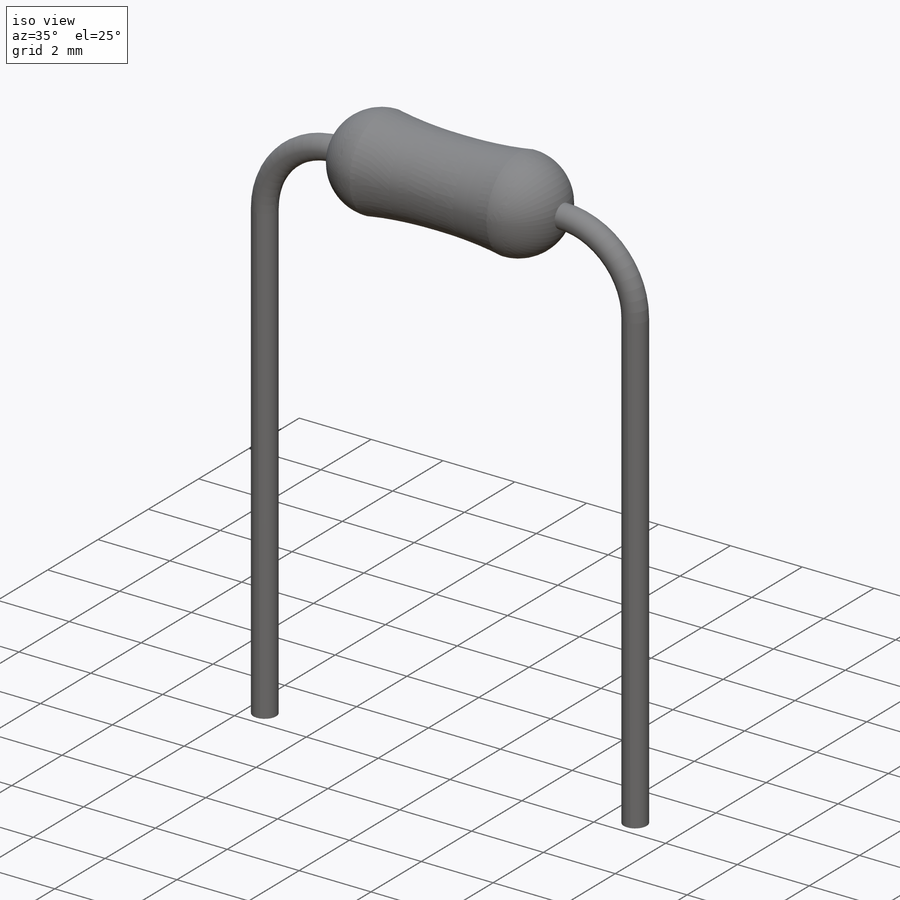
[diagram: iso view]
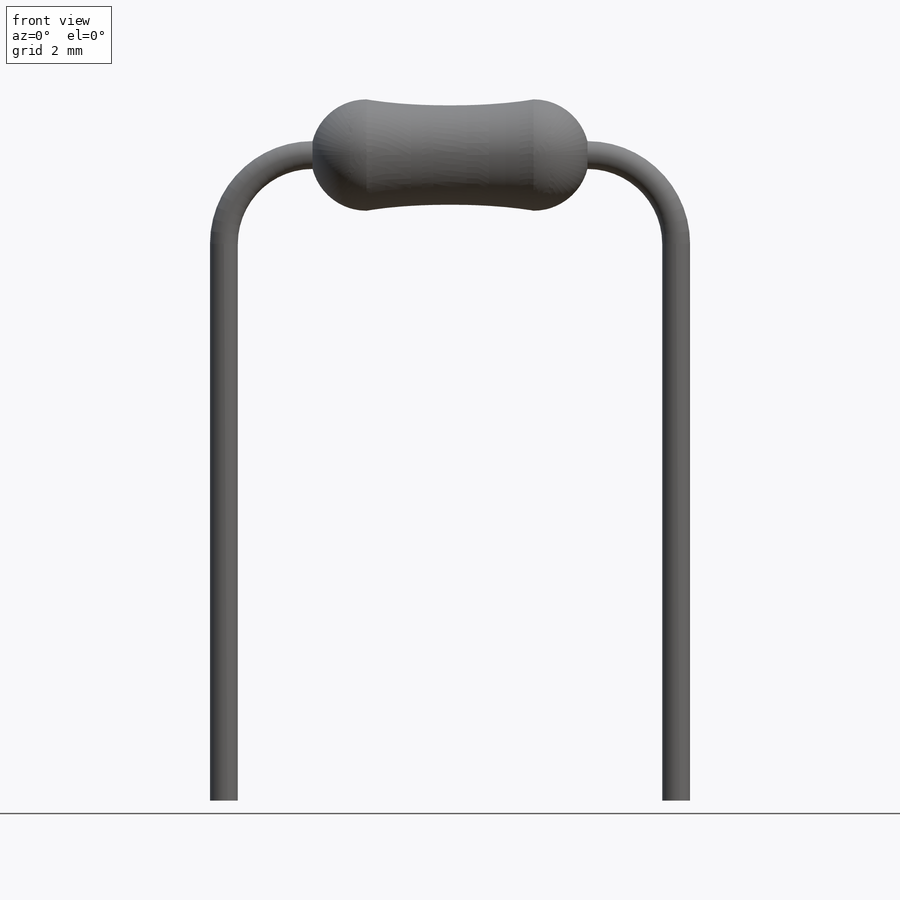
[diagram: front view]
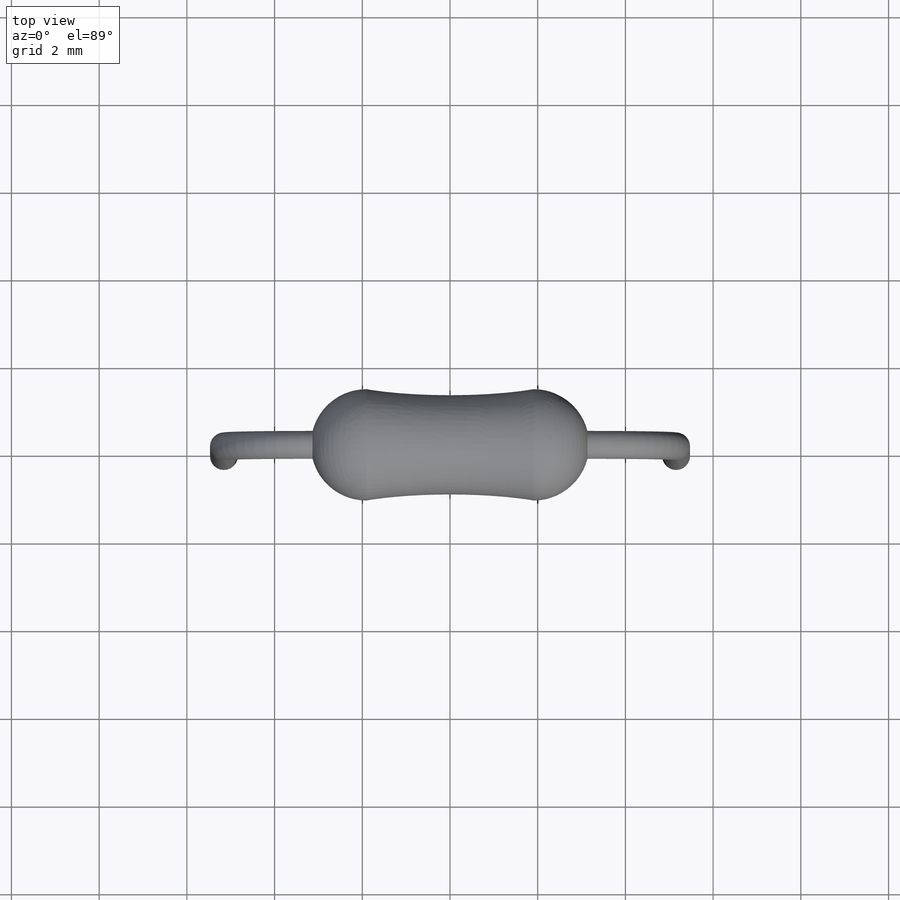
[diagram: top view]
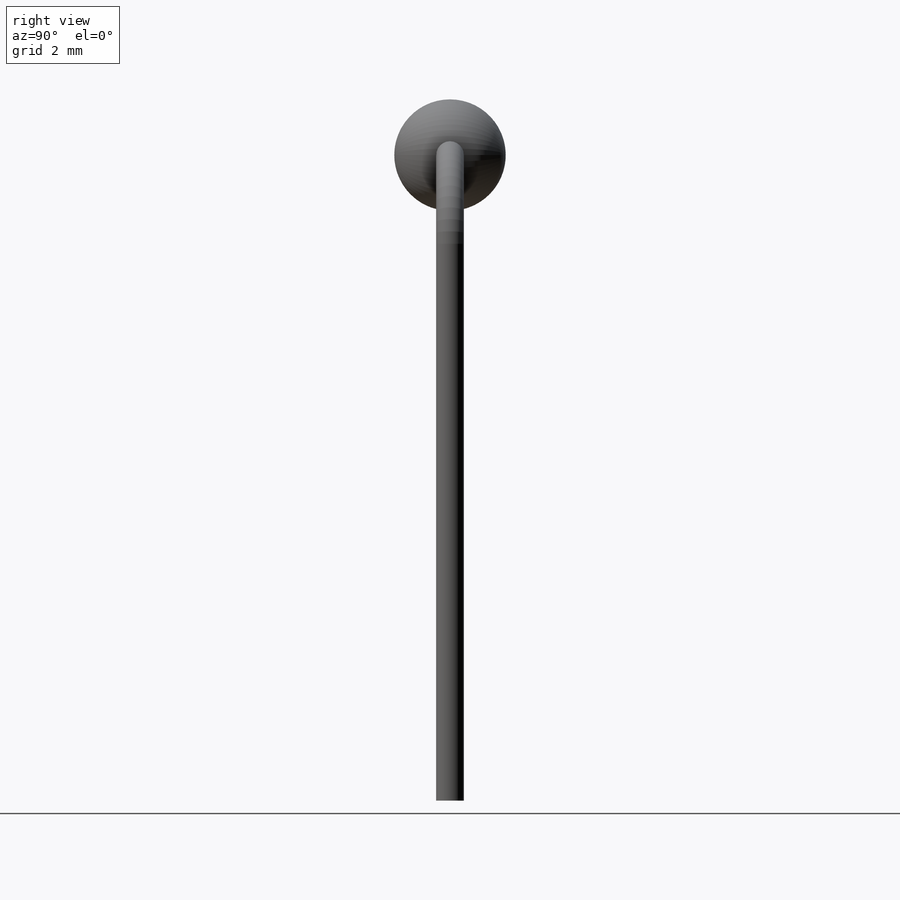
[diagram: right view]
SOLIDWORKS PART (.sldprt)
format: sldprt  version: not decoded by parser v0  size: 373,248 bytes
history: native  units: mm
features: sketch x7, cut_revolve x4, extrude x2, dome x2, mirror x2, material x1 (+11 scaffold rows collapsed)
feature tree (29):
  scaffold x11  (default folders/planes/origin — collapsed)
  material  "Material <not specified>"
  sketch  "Sketch1"  dims[D1=2.54mm]
  extrude  "Boss-Extrude1"  Depth=3.81mm
  dome  "Dome1"
  dome  "Dome2"
  sketch  "Sketch3"  dims[c1.D1=~7.373062mm c1.D2=~5.132386mm c1.D3=3.175mm c1.D4=3.175mm c2.D1=6.35mm c3.D1=10.0deg c3.D2=10.0deg c3.D5=~0.137833mm]
  cut_revolve  "Cut-Revolve1"  Angle=360deg
  sketch  "Sketch4"  dims[D1=0.635mm]
  extrude  "Boss-Extrude2"  Depth=15.875mm
  mirror  "Mirror5"
  sketch  "Sketch5"  dims[D1=0.381mm D2=0.508mm D3=0.889mm D4=0.508mm]
  sketch  "Sketch6"
  sketch  "Sketch7"
  sketch  "Sketch8"
  cut_revolve  "2nd Digit Band"  [1 undecoded]
  cut_revolve  "Power Band"  [1 undecoded]
  cut_revolve  "Tolerance Band"  Angle=90deg
  mirror  "Flex2"
decode coverage: 8 of 17 modeling features carry decoded parameters
note: ~ marks probable driven/reference dimensions
note: 2 parameter values undecoded
note: suppression state not decoded; provenance and decode notes live in map.json
